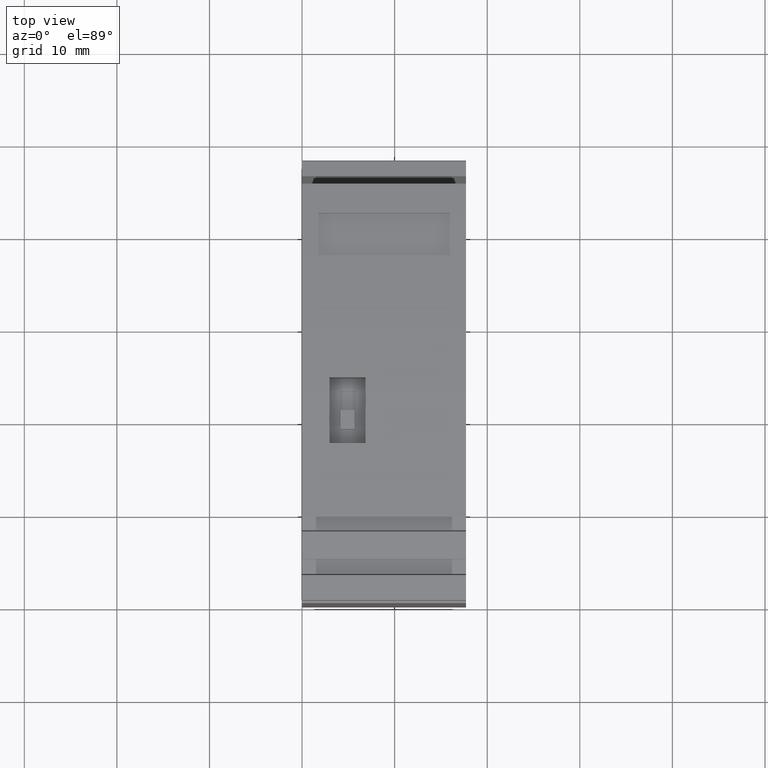
[diagram: clean part render]
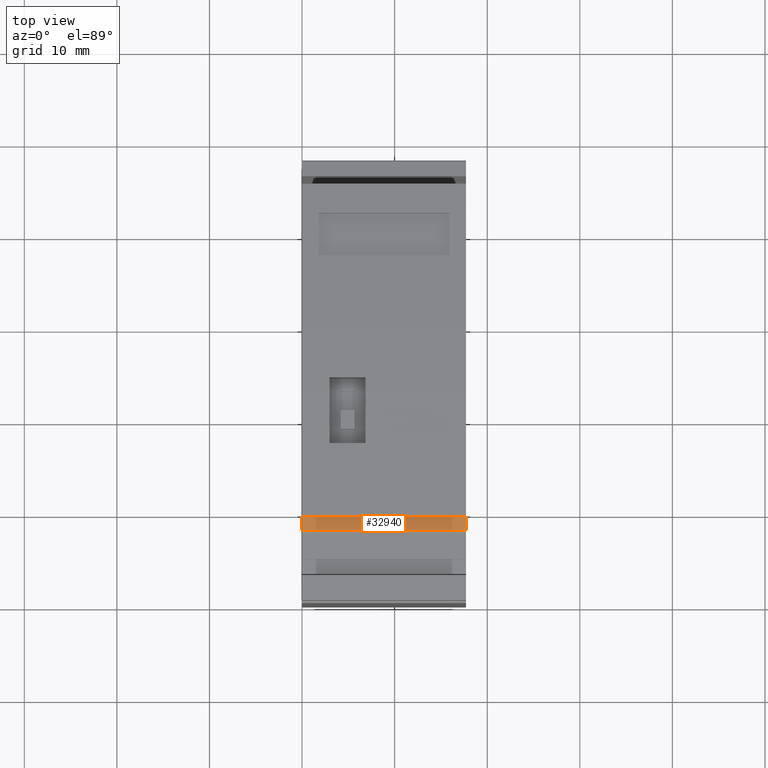
[diagram: same view with one face highlighted and labeled with its STEP entity id]
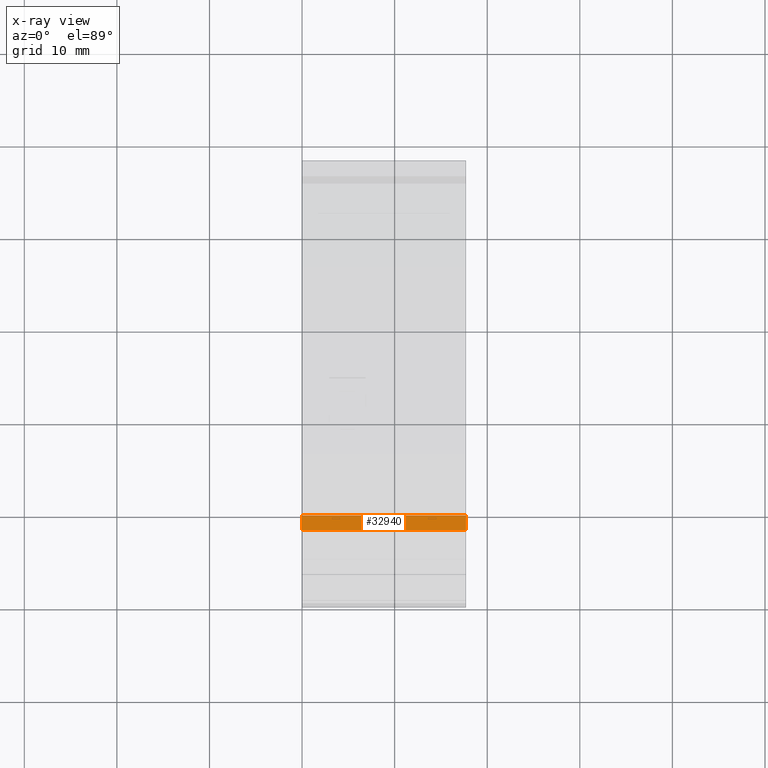
[diagram: x-ray of the same camera — body ghosted, the highlighted face saturated]
A machine part, top view. The second image highlights one B-rep face of the part: STEP entity #32940.
The next image is the same camera in x-ray: the body ghosted, the highlighted face saturated — about 0% of this face is hidden behind the body in this view.
In plain terms, the highlighted planar face has unit normal (0, 0.0832, -0.9965).
Its self-contained STEP definition (entity closure, byte-faithful):
#3100=CARTESIAN_POINT('',(172.092709102795,85.5600035581655,
7.27500000328213));
#3110=DIRECTION('',(-0.996534425424034,-0.0831813617632642,
-6.46234830978904E-27));
#3120=VECTOR('',#3110,1.);
#3130=LINE('',#3100,#3120);
#3380=CARTESIAN_POINT('',(124.212471367701,81.5634096876369,
7.27500000328213));
#3390=VERTEX_POINT('',#3380);
#3420=CARTESIAN_POINT('',(125.80382048839,81.6962406100041,
7.27500000328213));
#3430=VERTEX_POINT('',#3420);
#3440=EDGE_CURVE('',#3430,#3390,#3130,.T.);
#12230=CARTESIAN_POINT('',(125.803820489168,81.6962406100041,
-10.4249999974704));
#12240=VERTEX_POINT('',#12230);
#12270=CARTESIAN_POINT('',(172.092709102795,85.5600035581009,
-10.4249999995053));
#12280=DIRECTION('',(0.996534425424033,0.0831813617632698,
-4.38084846177134E-11));
#12290=VECTOR('',#12280,1.);
#12300=LINE('',#12270,#12290);
#12310=CARTESIAN_POINT('',(124.21247136769,81.5634096877027,
-10.4249999974005));
#12320=VERTEX_POINT('',#12310);
#12330=EDGE_CURVE('',#12320,#12240,#12300,.T.);
#15790=CARTESIAN_POINT('',(120.726827408305,81.2724607712685,
-2.69499999770466));
#15800=DIRECTION('',(0.0831813617632642,-0.996534425424034,
3.65673230402219E-12));
#15810=DIRECTION('',(0.996534425424034,0.0831813617632642,
4.38086074605188E-11));
#15820=AXIS2_PLACEMENT_3D('',#15790,#15800,#15810);
#15830=PLANE('',#15820);
#32660=CARTESIAN_POINT('',(125.803820488686,81.6962406100704,
0.425000002241945));
#32670=DIRECTION('',(4.39609574369475E-11,3.23118227099641E-27,-1.));
#32680=VECTOR('',#32670,1.);
#32690=LINE('',#32660,#32680);
#32700=EDGE_CURVE('',#3430,#12240,#32690,.T.);
#32830=ORIENTED_EDGE('',*,*,#32700,.T.);
#32840=ORIENTED_EDGE('',*,*,#3440,.F.);
#32850=CARTESIAN_POINT('',(124.212471367705,81.5634096876122,
0.425000002241946));
#32860=DIRECTION('',(6.22985879097354E-13,-3.61744802614888E-12,-1.));
#32870=VECTOR('',#32860,1.);
#32880=LINE('',#32850,#32870);
#32890=EDGE_CURVE('',#3390,#12320,#32880,.T.);
#32900=ORIENTED_EDGE('',*,*,#32890,.F.);
#32910=ORIENTED_EDGE('',*,*,#12330,.F.);
#32920=EDGE_LOOP('',(#32910,#32900,#32840,#32830));
#32930=FACE_OUTER_BOUND('',#32920,.T.);
#32940=ADVANCED_FACE('',(#32930),#15830,.F.);